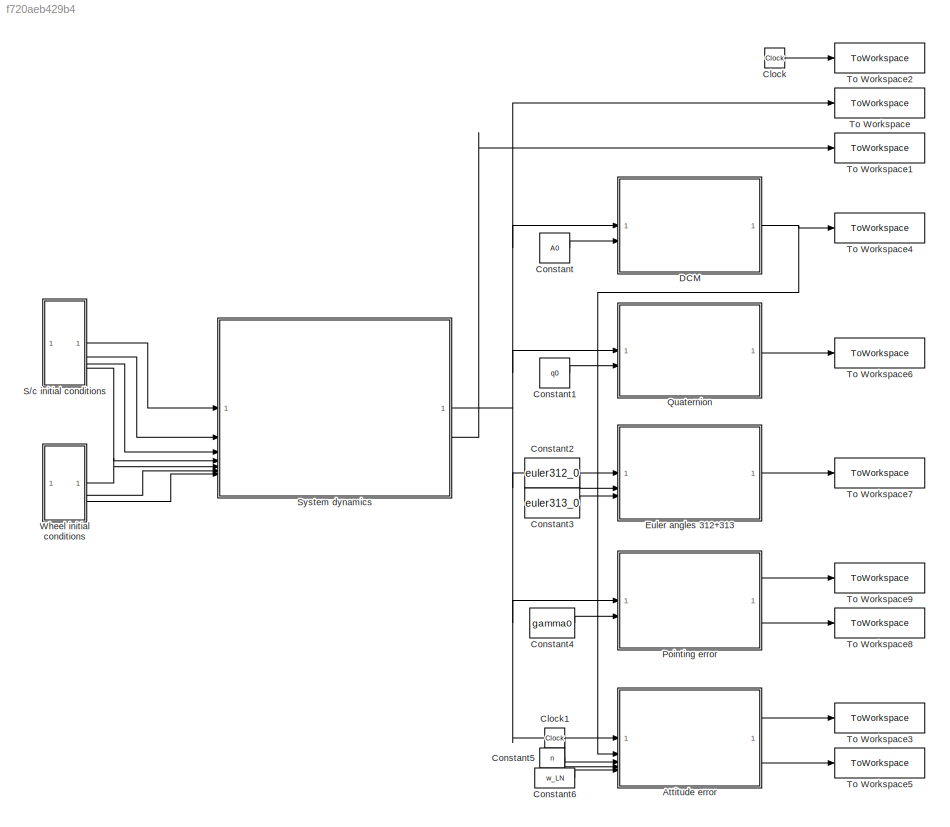
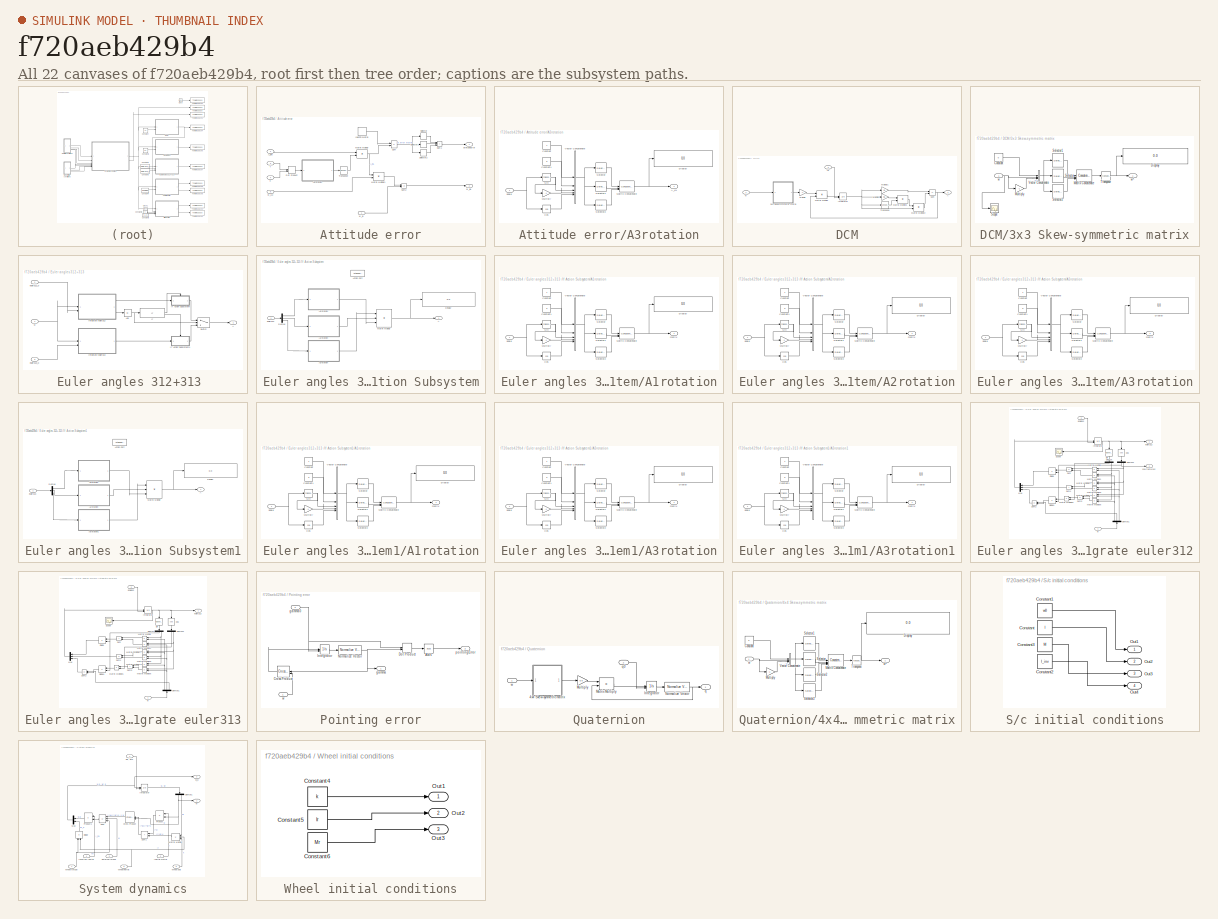
[diagram: thumbnail index - all 22 canvases of the model, root first then tree order]
MODEL slx_f720aeb429b4
KIND model
CONFIG AbsTol = 1e-07
CONFIG EnableMultiTasking = off
CONFIG FixedStep = auto
CONFIG MaxStep = 0.01
CONFIG MinStep = auto
CONFIG RelTol = 1e-09
CONFIG SampleTimeConstraint = Unconstrained
CONFIG SolverName = VariableStepAuto
CONFIG StartTime = 0.0
CONFIG StopTime = 20
BLOCK [SubSystem] Attitude error
BLOCK [SubSystem] Attitude error/A3rotation
BLOCK [Outport] Attitude error/A3rotation/A_LN
BLOCK [Constant] Attitude error/A3rotation/Constant
BLOCK [Constant] Attitude error/A3rotation/Constant1
  Value = 0
BLOCK [Trigonometry] Attitude error/A3rotation/Cos
  Operator = cos
BLOCK [Display] Attitude error/A3rotation/Display
  Decimation = 1
BLOCK [Concatenate] Attitude error/A3rotation/Matrix Concatenate
  ConcatenateDimension = 2
  Mode = Multidimensional array
  NumInputs = 3
BLOCK [Gain] Attitude error/A3rotation/Multiply
  Gain = -1
BLOCK [Selector] Attitude error/A3rotation/Selector
  IndexOptions = Index vector (dialog)
  Indices = [5 4 2]
  InputPortWidth = 5
  OutputSizes = 1
BLOCK [Selector] Attitude error/A3rotation/Selector1
  IndexOptions = Index vector (dialog)
  Indices = [3 5 2]
  InputPortWidth = 5
  OutputSizes = 1
BLOCK [Selector] Attitude error/A3rotation/Selector2
  IndexOptions = Index vector (dialog)
  Indices = [2 2 1]
  InputPortWidth = 5
  OutputSizes = 1
BLOCK [Trigonometry] Attitude error/A3rotation/Sin
BLOCK [Concatenate] Attitude error/A3rotation/Vector Concatenate
  NumInputs = 5
BLOCK [Inport] Attitude error/A3rotation/angle
BLOCK [Inport] Attitude error/A_BN
  Port = 2
BLOCK [DotProduct] Attitude error/Dot Product
  OutDataTypeStr = Inherit: Inherit via internal rule
BLOCK [IdentityMatrix] Attitude error/IdentityMatrix
  OutputDimensions = 3
BLOCK [Product] Attitude error/Matrix Multiply
  Multiplication = Matrix(*)
BLOCK [Product] Attitude error/Matrix Multiply1
  Multiplication = Matrix(*)
BLOCK [Selector] Attitude error/Selector
  IndexOptions = Index vector (dialog),Index vector (dialog)
  Indices = 1,1
  InputPortWidth = 3
  NumberOfDimensions = 2
  OutputSizes = 1,1
BLOCK [Selector] Attitude error/Selector1
  IndexOptions = Index vector (dialog),Index vector (dialog)
  Indices = 2,2
  InputPortWidth = 3
  NumberOfDimensions = 2
  OutputSizes = 1,1
BLOCK [Selector] Attitude error/Selector2
  IndexOptions = Index vector (dialog),Index vector (dialog)
  Indices = 3,3
  InputPortWidth = 3
  NumberOfDimensions = 2
  OutputSizes = 1,1
BLOCK [Sum] Attitude error/Sum
  IconShape = rectangular
  Inputs = |-+
BLOCK [Sum] Attitude error/Sum1
  IconShape = rectangular
  Inputs = |+++
BLOCK [Sum] Attitude error/Sum2
  IconShape = rectangular
  Inputs = |-+
BLOCK [Math] Attitude error/Transpose
  Operator = transpose
BLOCK [Outport] Attitude error/attitudeError
BLOCK [Inport] Attitude error/n
  Port = 4
BLOCK [Inport] Attitude error/t
  Port = 3
BLOCK [Inport] Attitude error/w_B
BLOCK [Outport] Attitude error/w_BL
  Port = 2
BLOCK [Inport] Attitude error/w_LN
  Port = 5
BLOCK [Clock] Clock
BLOCK [Clock] Clock1
BLOCK [Constant] Constant
  Value = A0
  VectorParams1D = off
BLOCK [Constant] Constant1
  Value = q0
  VectorParams1D = off
BLOCK [Constant] Constant2
  Value = euler312_0
  VectorParams1D = off
BLOCK [Constant] Constant3
  Value = euler313_0
  VectorParams1D = off
BLOCK [Constant] Constant4
  Value = gamma0
BLOCK [Constant] Constant5
  Value = n
  VectorParams1D = off
BLOCK [Constant] Constant6
  Value = w_LN
  VectorParams1D = off
BLOCK [SubSystem] DCM
BLOCK [SubSystem] DCM/3x3 Skew-symmetric matrix
BLOCK [Constant] DCM/3x3 Skew-symmetric matrix/Constant
  Value = 0
BLOCK [Display] DCM/3x3 Skew-symmetric matrix/Display
  Decimation = 1
BLOCK [Concatenate] DCM/3x3 Skew-symmetric matrix/Matrix Concatenate
  ConcatenateDimension = 2
  Mode = Multidimensional array
  NumInputs = 3
BLOCK [Gain] DCM/3x3 Skew-symmetric matrix/Multiply
  Gain = -1
BLOCK [Scope] DCM/3x3 Skew-symmetric matrix/Scope
  Floating = off
  NumInputPorts = 1
  ScopeSpecificationString = Simulink.scopes.TimeScopeBlockCfg('CurrentConfiguration', extmgr.ConfigurationSet(extmgr.Configuration('Core','General UI',true),extmgr.Configuration('Core','Source UI',true),extmgr.Configuration('Sources','WiredSimulink',true,'DataLoggingVariableName','ScopeData3'),extmgr.Configuration('Visuals','Time Domain',true,'SerializedDisplays',{struct('MinYLimReal','-0.40329','MaxYLimReal','0.85229','YLab...<+1418ch>
BLOCK [Selector] DCM/3x3 Skew-symmetric matrix/Selector
  IndexOptions = Index vector (dialog)
  Indices = [4 1 5]
  InputPortWidth = 7
  OutputSizes = 1
BLOCK [Selector] DCM/3x3 Skew-symmetric matrix/Selector1
  IndexOptions = Index vector (dialog)
  Indices = [1 7 3]
  InputPortWidth = 7
  OutputSizes = 1
BLOCK [Selector] DCM/3x3 Skew-symmetric matrix/Selector2
  IndexOptions = Index vector (dialog)
  Indices = [6 2 1]
  InputPortWidth = 7
  OutputSizes = 1
BLOCK [Math] DCM/3x3 Skew-symmetric matrix/Transpose
  Operator = transpose
BLOCK [Concatenate] DCM/3x3 Skew-symmetric matrix/Vector Concatenate
  NumInputs = 3
BLOCK [Inport] DCM/3x3 Skew-symmetric matrix/w
BLOCK [Outport] DCM/3x3 Skew-symmetric matrix/w^
BLOCK [Outport] DCM/A
BLOCK [Inport] DCM/A0
  Port = 2
BLOCK [Integrator] DCM/Integrator
  InitialConditionSource = external
BLOCK [Product] DCM/Matrix Multiply
  Multiplication = Matrix(*)
BLOCK [Product] DCM/Matrix Multiply1
  Multiplication = Matrix(*)
BLOCK [Product] DCM/Matrix Multiply2
  Multiplication = Matrix(*)
BLOCK [Gain] DCM/Multiply
  Gain = -1
BLOCK [Gain] DCM/Multiply1
  Gain = 1.5
BLOCK [Gain] DCM/Multiply2
  Gain = 0.5
BLOCK [Sum] DCM/Sum
  IconShape = rectangular
  Inputs = |+-
BLOCK [Math] DCM/Transpose
  Operator = transpose
BLOCK [Inport] DCM/w
BLOCK [SubSystem] Euler angles 312+313 
BLOCK [Outport] Euler angles 312+313 /A
BLOCK [Abs] Euler angles 312+313 /Abs
  SaturateOnIntegerOverflow = off
BLOCK [If] Euler angles 312+313 /If
  IfExpression = u1 > 0.1
BLOCK [SubSystem] Euler angles 312+313 /If Action Subsystem
  TreatAsAtomicUnit = on
BLOCK [Outport] Euler angles 312+313 /If Action Subsystem/A
BLOCK [SubSystem] Euler angles 312+313 /If Action Subsystem/A1rotation
BLOCK [Constant] Euler angles 312+313 /If Action Subsystem/A1rotation/Constant
BLOCK [Constant] Euler angles 312+313 /If Action Subsystem/A1rotation/Constant1
  Value = 0
BLOCK [Trigonometry] Euler angles 312+313 /If Action Subsystem/A1rotation/Cos
  Operator = cos
BLOCK [Display] Euler angles 312+313 /If Action Subsystem/A1rotation/Display
  Decimation = 1
BLOCK [Concatenate] Euler angles 312+313 /If Action Subsystem/A1rotation/Matrix Concatenate
  ConcatenateDimension = 2
  Mode = Multidimensional array
  NumInputs = 3
BLOCK [Gain] Euler angles 312+313 /If Action Subsystem/A1rotation/Multiply
  Gain = -1
BLOCK [Selector] Euler angles 312+313 /If Action Subsystem/A1rotation/Selector
  IndexOptions = Index vector (dialog)
  Indices = [1 2 2]
  InputPortWidth = 5
  OutputSizes = 1
BLOCK [Selector] Euler angles 312+313 /If Action Subsystem/A1rotation/Selector1
  IndexOptions = Index vector (dialog)
  Indices = [2 5 4]
  InputPortWidth = 5
  OutputSizes = 1
BLOCK [Selector] Euler angles 312+313 /If Action Subsystem/A1rotation/Selector2
  IndexOptions = Index vector (dialog)
  Indices = [2 3 5]
  InputPortWidth = 5
  OutputSizes = 1
BLOCK [Trigonometry] Euler angles 312+313 /If Action Subsystem/A1rotation/Sin
BLOCK [Concatenate] Euler angles 312+313 /If Action Subsystem/A1rotation/Vector Concatenate
  NumInputs = 5
BLOCK [Inport] Euler angles 312+313 /If Action Subsystem/A1rotation/angle
BLOCK [Outport] Euler angles 312+313 /If Action Subsystem/A1rotation/matrix
BLOCK [SubSystem] Euler angles 312+313 /If Action Subsystem/A2rotation
BLOCK [Constant] Euler angles 312+313 /If Action Subsystem/A2rotation/Constant
BLOCK [Constant] Euler angles 312+313 /If Action Subsystem/A2rotation/Constant1
  Value = 0
BLOCK [Trigonometry] Euler angles 312+313 /If Action Subsystem/A2rotation/Cos
  Operator = cos
BLOCK [Display] Euler angles 312+313 /If Action Subsystem/A2rotation/Display
  Decimation = 1
BLOCK [Concatenate] Euler angles 312+313 /If Action Subsystem/A2rotation/Matrix Concatenate
  ConcatenateDimension = 2
  Mode = Multidimensional array
  NumInputs = 3
BLOCK [Gain] Euler angles 312+313 /If Action Subsystem/A2rotation/Multiply
  Gain = -1
BLOCK [Selector] Euler angles 312+313 /If Action Subsystem/A2rotation/Selector
  IndexOptions = Index vector (dialog)
  Indices = [5 2 3]
  InputPortWidth = 5
  OutputSizes = 1
BLOCK [Selector] Euler angles 312+313 /If Action Subsystem/A2rotation/Selector1
  IndexOptions = Index vector (dialog)
  Indices = [2 1 2]
  InputPortWidth = 5
  OutputSizes = 1
BLOCK [Selector] Euler angles 312+313 /If Action Subsystem/A2rotation/Selector2
  IndexOptions = Index vector (dialog)
  Indices = [4 2 5]
  InputPortWidth = 5
  OutputSizes = 1
BLOCK [Trigonometry] Euler angles 312+313 /If Action Subsystem/A2rotation/Sin
BLOCK [Concatenate] Euler angles 312+313 /If Action Subsystem/A2rotation/Vector Concatenate
  NumInputs = 5
BLOCK [Inport] Euler angles 312+313 /If Action Subsystem/A2rotation/angle
BLOCK [Outport] Euler angles 312+313 /If Action Subsystem/A2rotation/matrix
BLOCK [SubSystem] Euler angles 312+313 /If Action Subsystem/A3rotation
BLOCK [Constant] Euler angles 312+313 /If Action Subsystem/A3rotation/Constant
BLOCK [Constant] Euler angles 312+313 /If Action Subsystem/A3rotation/Constant1
  Value = 0
BLOCK [Trigonometry] Euler angles 312+313 /If Action Subsystem/A3rotation/Cos
  Operator = cos
BLOCK [Display] Euler angles 312+313 /If Action Subsystem/A3rotation/Display
  Decimation = 1
BLOCK [Concatenate] Euler angles 312+313 /If Action Subsystem/A3rotation/Matrix Concatenate
  ConcatenateDimension = 2
  Mode = Multidimensional array
  NumInputs = 3
BLOCK [Gain] Euler angles 312+313 /If Action Subsystem/A3rotation/Multiply
  Gain = -1
BLOCK [Selector] Euler angles 312+313 /If Action Subsystem/A3rotation/Selector
  IndexOptions = Index vector (dialog)
  Indices = [5 4 2]
  InputPortWidth = 5
  OutputSizes = 1
BLOCK [Selector] Euler angles 312+313 /If Action Subsystem/A3rotation/Selector1
  IndexOptions = Index vector (dialog)
  Indices = [3 5 2]
  InputPortWidth = 5
  OutputSizes = 1
BLOCK [Selector] Euler angles 312+313 /If Action Subsystem/A3rotation/Selector2
  IndexOptions = Index vector (dialog)
  Indices = [2 2 1]
  InputPortWidth = 5
  OutputSizes = 1
BLOCK [Trigonometry] Euler angles 312+313 /If Action Subsystem/A3rotation/Sin
BLOCK [Concatenate] Euler angles 312+313 /If Action Subsystem/A3rotation/Vector Concatenate
  NumInputs = 5
BLOCK [Inport] Euler angles 312+313 /If Action Subsystem/A3rotation/angle
BLOCK [Outport] Euler angles 312+313 /If Action Subsystem/A3rotation/matrix
BLOCK [ActionPort] Euler angles 312+313 /If Action Subsystem/Action Port
  ActionPortLabel = if(u1 > 0.1)
BLOCK [Demux] Euler angles 312+313 /If Action Subsystem/Demux
  Outputs = 3
BLOCK [Display] Euler angles 312+313 /If Action Subsystem/Display
  Decimation = 1
BLOCK [Product] Euler angles 312+313 /If Action Subsystem/Matrix Multiply
  Inputs = 3
  Multiplication = Matrix(*)
BLOCK [Inport] Euler angles 312+313 /If Action Subsystem/euler312
BLOCK [SubSystem] Euler angles 312+313 /If Action Subsystem1
  TreatAsAtomicUnit = on
BLOCK [Outport] Euler angles 312+313 /If Action Subsystem1/A
BLOCK [SubSystem] Euler angles 312+313 /If Action Subsystem1/A1rotation
BLOCK [Constant] Euler angles 312+313 /If Action Subsystem1/A1rotation/Constant
BLOCK [Constant] Euler angles 312+313 /If Action Subsystem1/A1rotation/Constant1
  Value = 0
BLOCK [Trigonometry] Euler angles 312+313 /If Action Subsystem1/A1rotation/Cos
  Operator = cos
BLOCK [Display] Euler angles 312+313 /If Action Subsystem1/A1rotation/Display
  Decimation = 1
BLOCK [Concatenate] Euler angles 312+313 /If Action Subsystem1/A1rotation/Matrix Concatenate
  ConcatenateDimension = 2
  Mode = Multidimensional array
  NumInputs = 3
BLOCK [Gain] Euler angles 312+313 /If Action Subsystem1/A1rotation/Multiply
  Gain = -1
BLOCK [Selector] Euler angles 312+313 /If Action Subsystem1/A1rotation/Selector
  IndexOptions = Index vector (dialog)
  Indices = [1 2 2]
  InputPortWidth = 5
  OutputSizes = 1
BLOCK [Selector] Euler angles 312+313 /If Action Subsystem1/A1rotation/Selector1
  IndexOptions = Index vector (dialog)
  Indices = [2 5 4]
  InputPortWidth = 5
  OutputSizes = 1
BLOCK [Selector] Euler angles 312+313 /If Action Subsystem1/A1rotation/Selector2
  IndexOptions = Index vector (dialog)
  Indices = [2 3 5]
  InputPortWidth = 5
  OutputSizes = 1
BLOCK [Trigonometry] Euler angles 312+313 /If Action Subsystem1/A1rotation/Sin
BLOCK [Concatenate] Euler angles 312+313 /If Action Subsystem1/A1rotation/Vector Concatenate
  NumInputs = 5
BLOCK [Inport] Euler angles 312+313 /If Action Subsystem1/A1rotation/angle
BLOCK [Outport] Euler angles 312+313 /If Action Subsystem1/A1rotation/matrix
BLOCK [SubSystem] Euler angles 312+313 /If Action Subsystem1/A3rotation
BLOCK [Constant] Euler angles 312+313 /If Action Subsystem1/A3rotation/Constant
BLOCK [Constant] Euler angles 312+313 /If Action Subsystem1/A3rotation/Constant1
  Value = 0
BLOCK [Trigonometry] Euler angles 312+313 /If Action Subsystem1/A3rotation/Cos
  Operator = cos
BLOCK [Display] Euler angles 312+313 /If Action Subsystem1/A3rotation/Display
  Decimation = 1
BLOCK [Concatenate] Euler angles 312+313 /If Action Subsystem1/A3rotation/Matrix Concatenate
  ConcatenateDimension = 2
  Mode = Multidimensional array
  NumInputs = 3
BLOCK [Gain] Euler angles 312+313 /If Action Subsystem1/A3rotation/Multiply
  Gain = -1
BLOCK [Selector] Euler angles 312+313 /If Action Subsystem1/A3rotation/Selector
  IndexOptions = Index vector (dialog)
  Indices = [5 4 2]
  InputPortWidth = 5
  OutputSizes = 1
BLOCK [Selector] Euler angles 312+313 /If Action Subsystem1/A3rotation/Selector1
  IndexOptions = Index vector (dialog)
  Indices = [3 5 2]
  InputPortWidth = 5
  OutputSizes = 1
BLOCK [Selector] Euler angles 312+313 /If Action Subsystem1/A3rotation/Selector2
  IndexOptions = Index vector (dialog)
  Indices = [2 2 1]
  InputPortWidth = 5
  OutputSizes = 1
BLOCK [Trigonometry] Euler angles 312+313 /If Action Subsystem1/A3rotation/Sin
BLOCK [Concatenate] Euler angles 312+313 /If Action Subsystem1/A3rotation/Vector Concatenate
  NumInputs = 5
BLOCK [Inport] Euler angles 312+313 /If Action Subsystem1/A3rotation/angle
BLOCK [Outport] Euler angles 312+313 /If Action Subsystem1/A3rotation/matrix
BLOCK [SubSystem] Euler angles 312+313 /If Action Subsystem1/A3rotation1
BLOCK [Constant] Euler angles 312+313 /If Action Subsystem1/A3rotation1/Constant
BLOCK [Constant] Euler angles 312+313 /If Action Subsystem1/A3rotation1/Constant1
  Value = 0
BLOCK [Trigonometry] Euler angles 312+313 /If Action Subsystem1/A3rotation1/Cos
  Operator = cos
BLOCK [Display] Euler angles 312+313 /If Action Subsystem1/A3rotation1/Display
  Decimation = 1
BLOCK [Concatenate] Euler angles 312+313 /If Action Subsystem1/A3rotation1/Matrix Concatenate
  ConcatenateDimension = 2
  Mode = Multidimensional array
  NumInputs = 3
BLOCK [Gain] Euler angles 312+313 /If Action Subsystem1/A3rotation1/Multiply
  Gain = -1
BLOCK [Selector] Euler angles 312+313 /If Action Subsystem1/A3rotation1/Selector
  IndexOptions = Index vector (dialog)
  Indices = [5 4 2]
  InputPortWidth = 5
  OutputSizes = 1
BLOCK [Selector] Euler angles 312+313 /If Action Subsystem1/A3rotation1/Selector1
  IndexOptions = Index vector (dialog)
  Indices = [3 5 2]
  InputPortWidth = 5
  OutputSizes = 1
BLOCK [Selector] Euler angles 312+313 /If Action Subsystem1/A3rotation1/Selector2
  IndexOptions = Index vector (dialog)
  Indices = [2 2 1]
  InputPortWidth = 5
  OutputSizes = 1
BLOCK [Trigonometry] Euler angles 312+313 /If Action Subsystem1/A3rotation1/Sin
BLOCK [Concatenate] Euler angles 312+313 /If Action Subsystem1/A3rotation1/Vector Concatenate
  NumInputs = 5
BLOCK [Inport] Euler angles 312+313 /If Action Subsystem1/A3rotation1/angle
BLOCK [Outport] Euler angles 312+313 /If Action Subsystem1/A3rotation1/matrix
BLOCK [ActionPort] Euler angles 312+313 /If Action Subsystem1/Action Port
  ActionPortLabel = else
BLOCK [Demux] Euler angles 312+313 /If Action Subsystem1/Demux
  Outputs = 3
BLOCK [Display] Euler angles 312+313 /If Action Subsystem1/Display
  Decimation = 1
BLOCK [Product] Euler angles 312+313 /If Action Subsystem1/Matrix Multiply
  Inputs = 3
  Multiplication = Matrix(*)
BLOCK [Inport] Euler angles 312+313 /If Action Subsystem1/euler313
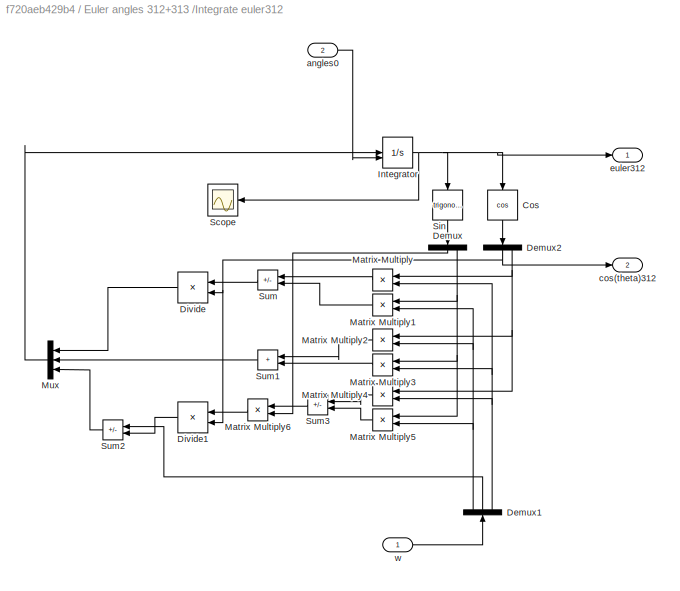
BLOCK [SubSystem] Euler angles 312+313 /Integrate euler312
BLOCK [Trigonometry] Euler angles 312+313 /Integrate euler312/Cos
  NameLocation = left
  Operator = cos
BLOCK [Demux] Euler angles 312+313 /Integrate euler312/Demux
  NameLocation = left
  Outputs = 3
BLOCK [Demux] Euler angles 312+313 /Integrate euler312/Demux1
  NameLocation = right
  Outputs = 3
BLOCK [Demux] Euler angles 312+313 /Integrate euler312/Demux2
  NameLocation = left
  Outputs = 3
BLOCK [Product] Euler angles 312+313 /Integrate euler312/Divide
  Inputs = */
  NameLocation = top
BLOCK [Product] Euler angles 312+313 /Integrate euler312/Divide1
  Inputs = */
  NameLocation = top
BLOCK [Integrator] Euler angles 312+313 /Integrate euler312/Integrator
  InitialConditionSource = external
BLOCK [Product] Euler angles 312+313 /Integrate euler312/Matrix Multiply
  NameLocation = top
BLOCK [Product] Euler angles 312+313 /Integrate euler312/Matrix Multiply1
  NameLocation = top
BLOCK [Product] Euler angles 312+313 /Integrate euler312/Matrix Multiply2
  NameLocation = top
BLOCK [Product] Euler angles 312+313 /Integrate euler312/Matrix Multiply3
  NameLocation = top
BLOCK [Product] Euler angles 312+313 /Integrate euler312/Matrix Multiply4
  NameLocation = top
BLOCK [Product] Euler angles 312+313 /Integrate euler312/Matrix Multiply5
  NameLocation = top
BLOCK [Product] Euler angles 312+313 /Integrate euler312/Matrix Multiply6
  NameLocation = top
BLOCK [Mux] Euler angles 312+313 /Integrate euler312/Mux
  DisplayOption = bar
  Inputs = 3
  NameLocation = top
BLOCK [Scope] Euler angles 312+313 /Integrate euler312/Scope
  Floating = off
  NameLocation = top
  NumInputPorts = 1
  ScopeSpecificationString = Simulink.scopes.TimeScopeBlockCfg('CurrentConfiguration', extmgr.ConfigurationSet(extmgr.Configuration('Core','General UI',true),extmgr.Configuration('Core','Source UI',true),extmgr.Configuration('Sources','WiredSimulink',true,'DataLoggingVariableName','ScopeData1'),extmgr.Configuration('Visuals','Time Domain',true,'SerializedDisplays',{struct('MinYLimReal','-29.06645','MaxYLimReal','73.0633','YLa...<+1403ch>
BLOCK [Trigonometry] Euler angles 312+313 /Integrate euler312/Sin
  NameLocation = left
BLOCK [Sum] Euler angles 312+313 /Integrate euler312/Sum
  IconShape = rectangular
  Inputs = |+-
  NameLocation = top
BLOCK [Sum] Euler angles 312+313 /Integrate euler312/Sum1
  IconShape = rectangular
  Inputs = |++
  NameLocation = top
BLOCK [Sum] Euler angles 312+313 /Integrate euler312/Sum2
  IconShape = rectangular
  Inputs = |+-
  NameLocation = top
BLOCK [Sum] Euler angles 312+313 /Integrate euler312/Sum3
  IconShape = rectangular
  Inputs = |+-
  NameLocation = top
BLOCK [Inport] Euler angles 312+313 /Integrate euler312/angles0
  Port = 2
BLOCK [Outport] Euler angles 312+313 /Integrate euler312/cos(theta)312
  Port = 2
BLOCK [Outport] Euler angles 312+313 /Integrate euler312/euler312
BLOCK [Inport] Euler angles 312+313 /Integrate euler312/w
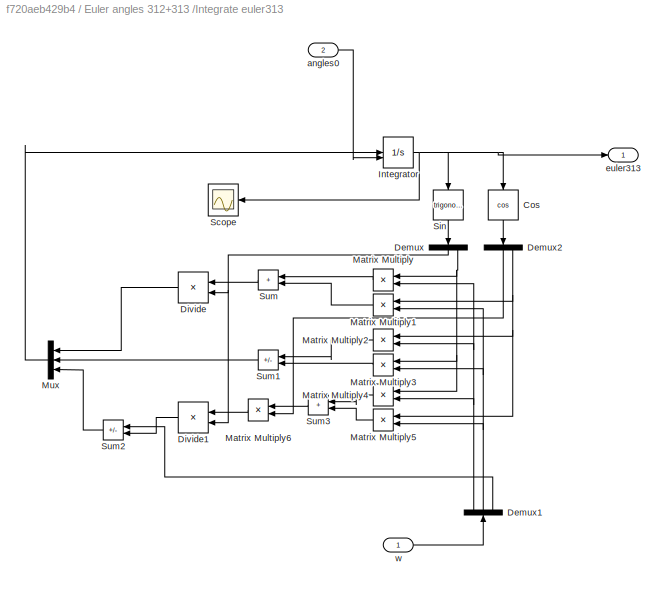
BLOCK [SubSystem] Euler angles 312+313 /Integrate euler313
BLOCK [Trigonometry] Euler angles 312+313 /Integrate euler313/Cos
  NameLocation = left
  Operator = cos
BLOCK [Demux] Euler angles 312+313 /Integrate euler313/Demux
  NameLocation = left
  Outputs = 3
BLOCK [Demux] Euler angles 312+313 /Integrate euler313/Demux1
  NameLocation = right
  Outputs = 3
BLOCK [Demux] Euler angles 312+313 /Integrate euler313/Demux2
  NameLocation = left
  Outputs = 3
BLOCK [Product] Euler angles 312+313 /Integrate euler313/Divide
  Inputs = */
  NameLocation = top
BLOCK [Product] Euler angles 312+313 /Integrate euler313/Divide1
  Inputs = */
  NameLocation = top
BLOCK [Integrator] Euler angles 312+313 /Integrate euler313/Integrator
  InitialConditionSource = external
BLOCK [Product] Euler angles 312+313 /Integrate euler313/Matrix Multiply
  NameLocation = top
BLOCK [Product] Euler angles 312+313 /Integrate euler313/Matrix Multiply1
  NameLocation = top
BLOCK [Product] Euler angles 312+313 /Integrate euler313/Matrix Multiply2
  NameLocation = top
BLOCK [Product] Euler angles 312+313 /Integrate euler313/Matrix Multiply3
  NameLocation = top
BLOCK [Product] Euler angles 312+313 /Integrate euler313/Matrix Multiply4
  NameLocation = top
BLOCK [Product] Euler angles 312+313 /Integrate euler313/Matrix Multiply5
  NameLocation = top
BLOCK [Product] Euler angles 312+313 /Integrate euler313/Matrix Multiply6
  NameLocation = top
BLOCK [Mux] Euler angles 312+313 /Integrate euler313/Mux
  DisplayOption = bar
  Inputs = 3
  NameLocation = top
BLOCK [Scope] Euler angles 312+313 /Integrate euler313/Scope
  Floating = off
  NameLocation = top
  NumInputPorts = 1
  ScopeSpecificationString = Simulink.scopes.TimeScopeBlockCfg('CurrentConfiguration', extmgr.ConfigurationSet(extmgr.Configuration('Core','General UI',true),extmgr.Configuration('Core','Source UI',true),extmgr.Configuration('Sources','WiredSimulink',true,'DataLoggingVariableName','ScopeData2'),extmgr.Configuration('Visuals','Time Domain',true,'SerializedDisplays',{struct('MinYLimReal','-34.15993','MaxYLimReal','323.00699','Y...<+1411ch>
BLOCK [Trigonometry] Euler angles 312+313 /Integrate euler313/Sin
  NameLocation = left
BLOCK [Sum] Euler angles 312+313 /Integrate euler313/Sum
  IconShape = rectangular
  Inputs = |++
  NameLocation = top
BLOCK [Sum] Euler angles 312+313 /Integrate euler313/Sum1
  IconShape = rectangular
  Inputs = |+-
  NameLocation = top
BLOCK [Sum] Euler angles 312+313 /Integrate euler313/Sum2
  IconShape = rectangular
  Inputs = |+-
  NameLocation = top
BLOCK [Sum] Euler angles 312+313 /Integrate euler313/Sum3
  IconShape = rectangular
  Inputs = |++
  NameLocation = top
BLOCK [Inport] Euler angles 312+313 /Integrate euler313/angles0
  Port = 2
BLOCK [Outport] Euler angles 312+313 /Integrate euler313/euler313
BLOCK [Inport] Euler angles 312+313 /Integrate euler313/w
BLOCK [Switch] Euler angles 312+313 /Switch
  Criteria = u2 > Threshold
  InputSameDT = off
  SaturateOnIntegerOverflow = off
  Threshold = 0.1
BLOCK [Inport] Euler angles 312+313 /euler312_0
  Port = 2
BLOCK [Inport] Euler angles 312+313 /euler313_0
  Port = 3
BLOCK [Inport] Euler angles 312+313 /w
BLOCK [SubSystem] Pointing error
BLOCK [Trigonometry] Pointing error/Acos
  Operator = acos
BLOCK [Reference] Pointing error/Cross Product  REF=matrix_library/Cross Product
  LibrarySourceBlock = simulink/Matrix\nOperations/Cross Product
  NameLocation = top
  SourceBlock = matrix_library/Cross Product
  SourceType = CrossProduct
BLOCK [DotProduct] Pointing error/Dot Product
  OutDataTypeStr = Inherit: Inherit via internal rule
BLOCK [Integrator] Pointing error/Integrator
  InitialConditionSource = external
BLOCK [Reference] Pointing error/Normalize Vector  REF=vrlib/Utilities/Normalize Vector
  SourceBlock = vrlib/Utilities/Normalize Vector
  SourceType = Normalize Vector
BLOCK [Outport] Pointing error/gamma
BLOCK [Inport] Pointing error/gamma0
  Port = 2
BLOCK [Outport] Pointing error/pointingError
  Port = 2
BLOCK [Inport] Pointing error/w
BLOCK [SubSystem] Quaternion
BLOCK [SubSystem] Quaternion/4x4 Skew-symmetric matrix
BLOCK [Constant] Quaternion/4x4 Skew-symmetric matrix/Constant
  Value = 0
BLOCK [Display] Quaternion/4x4 Skew-symmetric matrix/Display
  Decimation = 1
BLOCK [Concatenate] Quaternion/4x4 Skew-symmetric matrix/Matrix Concatenate
  ConcatenateDimension = 2
  Mode = Multidimensional array
  NumInputs = 4
BLOCK [Gain] Quaternion/4x4 Skew-symmetric matrix/Multiply
  Gain = -1
BLOCK [Selector] Quaternion/4x4 Skew-symmetric matrix/Selector
  IndexOptions = Index vector (dialog)
  Indices = [7 1 2 3]
  InputPortWidth = 7
  OutputSizes = 1
BLOCK [Selector] Quaternion/4x4 Skew-symmetric matrix/Selector1
  IndexOptions = Index vector (dialog)
  Indices = [1 4 6 2]
  InputPortWidth = 7
  OutputSizes = 1
BLOCK [Selector] Quaternion/4x4 Skew-symmetric matrix/Selector2
  IndexOptions = Index vector (dialog)
  Indices = [3 5 1 4]
  InputPortWidth = 7
  OutputSizes = 1
BLOCK [Selector] Quaternion/4x4 Skew-symmetric matrix/Selector3
  IndexOptions = Index vector (dialog)
  Indices = [5 6 7 1]
  InputPortWidth = 7
  OutputSizes = 1
BLOCK [Math] Quaternion/4x4 Skew-symmetric matrix/Transpose
  Operator = transpose
BLOCK [Concatenate] Quaternion/4x4 Skew-symmetric matrix/Vector Concatenate
  NumInputs = 3
BLOCK [Inport] Quaternion/4x4 Skew-symmetric matrix/w
BLOCK [Outport] Quaternion/4x4 Skew-symmetric matrix/w^
BLOCK [Integrator] Quaternion/Integrator
  InitialConditionSource = external
BLOCK [Product] Quaternion/Matrix Multiply
  Multiplication = Matrix(*)
BLOCK [Gain] Quaternion/Multiply
  Gain = 0.5
BLOCK [Reference] Quaternion/Normalize Vector  REF=vrlib/Utilities/Normalize Vector
  SourceBlock = vrlib/Utilities/Normalize Vector
  SourceType = Normalize Vector
BLOCK [Outport] Quaternion/q
BLOCK [Inport] Quaternion/q0
  Port = 2
BLOCK [Inport] Quaternion/w
BLOCK [SubSystem] S//c initial conditions
BLOCK [Constant] S//c initial conditions/Constant
  Value = I
  VectorParams1D = off
BLOCK [Constant] S//c initial conditions/Constant1
  Value = w0
  VectorParams1D = off
BLOCK [Constant] S//c initial conditions/Constant2
  Value = I_inv
  VectorParams1D = off
BLOCK [Constant] S//c initial conditions/Constant3
  Value = M
  VectorParams1D = off
BLOCK [Outport] S//c initial conditions/Out1
BLOCK [Outport] S//c initial conditions/Out2
  Port = 2
BLOCK [Outport] S//c initial conditions/Out3
  Port = 3
BLOCK [Outport] S//c initial conditions/Out4
  Port = 4
BLOCK [SubSystem] System dynamics
BLOCK [Reference] System dynamics/Cross Product  REF=matrix_library/Cross Product
  LibrarySourceBlock = simulink/Matrix\nOperations/Cross Product
  NameLocation = top
  SourceBlock = matrix_library/Cross Product
  SourceType = CrossProduct
BLOCK [Demux] System dynamics/Demux1
  NameLocation = left
  Outputs = 2
BLOCK [Product] System dynamics/Divide
  Inputs = */
  NameLocation = right
BLOCK [Inport] System dynamics/External torque
  Port = 3
BLOCK [Inport] System dynamics/Inertia matrix
  Port = 2
BLOCK [Integrator] System dynamics/Integrator
  InitialConditionSource = external
BLOCK [Inport] System dynamics/Inverted Inertia
  Port = 4
BLOCK [Product] System dynamics/Matrix Multiply
  Inputs = 3
  NameLocation = top
BLOCK [Mux] System dynamics/Mux
  DisplayOption = bar
  Inputs = 2
  NameLocation = top
BLOCK [Product] System dynamics/Product
  Multiplication = Matrix(*)
  NameLocation = top
BLOCK [Product] System dynamics/Product1
  Multiplication = Matrix(*)
  NameLocation = top
BLOCK [Sum] System dynamics/Sum
  IconShape = rectangular
  Inputs = |++-
  NameLocation = top
BLOCK [Sum] System dynamics/Sum1
  IconShape = rectangular
  Inputs = |++
  NameLocation = top
BLOCK [Inport] System dynamics/Wheel axis
  Port = 5
BLOCK [Inport] System dynamics/Wheel inertia
  Port = 6
BLOCK [Inport] System dynamics/Wheel torque
  Port = 7
BLOCK [Outport] System dynamics/w
BLOCK [Inport] System dynamics/w0, wr0
BLOCK [Outport] System dynamics/w_d
  Port = 2
BLOCK [ToWorkspace] To Workspace
  FixptAsFi = on
  MaxDataPoints = inf
  SampleTime = -1
  VariableName = w
BLOCK [ToWorkspace] To Workspace1
  FixptAsFi = on
  MaxDataPoints = inf
  SampleTime = -1
  VariableName = w_d
BLOCK [ToWorkspace] To Workspace2
  FixptAsFi = on
  MaxDataPoints = inf
  SampleTime = -1
  VariableName = time
BLOCK [ToWorkspace] To Workspace3
  FixptAsFi = on
  MaxDataPoints = inf
  SampleTime = -1
  VariableName = attitudeError
BLOCK [ToWorkspace] To Workspace4
  FixptAsFi = on
  MaxDataPoints = inf
  SampleTime = -1
  VariableName = A
BLOCK [ToWorkspace] To Workspace5
  FixptAsFi = on
  MaxDataPoints = inf
  SampleTime = -1
  VariableName = w_BL
BLOCK [ToWorkspace] To Workspace6
  FixptAsFi = on
  MaxDataPoints = inf
  SampleTime = -1
  VariableName = q
BLOCK [ToWorkspace] To Workspace7
  FixptAsFi = on
  MaxDataPoints = inf
  SampleTime = -1
  VariableName = Aeuler
BLOCK [ToWorkspace] To Workspace8
  FixptAsFi = on
  MaxDataPoints = inf
  SampleTime = -1
  VariableName = pointingError
BLOCK [ToWorkspace] To Workspace9
  FixptAsFi = on
  MaxDataPoints = inf
  SampleTime = -1
  VariableName = gamma
BLOCK [SubSystem] Wheel initial conditions
BLOCK [Constant] Wheel initial conditions/Constant4
  Value = k
  VectorParams1D = off
BLOCK [Constant] Wheel initial conditions/Constant5
  Value = Ir
BLOCK [Constant] Wheel initial conditions/Constant6
  Value = Mr
BLOCK [Outport] Wheel initial conditions/Out1
BLOCK [Outport] Wheel initial conditions/Out2
  Port = 2
BLOCK [Outport] Wheel initial conditions/Out3
  Port = 3
LINE Attitude error/A3rotation/Constant1:1 -> Attitude error/A3rotation/Vector Concatenate:2
LINE Attitude error/A3rotation/Constant:1 -> Attitude error/A3rotation/Vector Concatenate:1
LINE Attitude error/A3rotation/Cos:1 -> Attitude error/A3rotation/Vector Concatenate:5
NET Attitude error/A3rotation/Matrix Concatenate:1 -> Attitude error/A3rotation/A_LN:1, Attitude error/A3rotation/Display:1
LINE Attitude error/A3rotation/Multiply:1 -> Attitude error/A3rotation/Vector Concatenate:4
LINE Attitude error/A3rotation/Selector1:1 -> Attitude error/A3rotation/Matrix Concatenate:2
LINE Attitude error/A3rotation/Selector2:1 -> Attitude error/A3rotation/Matrix Concatenate:3
LINE Attitude error/A3rotation/Selector:1 -> Attitude error/A3rotation/Matrix Concatenate:1
NET Attitude error/A3rotation/Sin:1 -> Attitude error/A3rotation/Multiply:1, Attitude error/A3rotation/Vector Concatenate:3
NET Attitude error/A3rotation/Vector Concatenate:1 -> Attitude error/A3rotation/Selector1:1, Attitude error/A3rotation/Selector2:1, Attitude error/A3rotation/Selector:1
NET Attitude error/A3rotation/angle:1 -> Attitude error/A3rotation/Cos:1, Attitude error/A3rotation/Sin:1
LINE Attitude error/A3rotation:1 -> Attitude error/Transpose:1
LINE Attitude error/A_BN:1 -> Attitude error/Matrix Multiply:1
LINE Attitude error/Dot Product:1 -> Attitude error/A3rotation:1
LINE Attitude error/IdentityMatrix:1 -> Attitude error/Sum:1
LINE Attitude error/Matrix Multiply1:1 -> Attitude error/Sum2:1
NET Attitude error/Matrix Multiply:1 -> Attitude error/Matrix Multiply1:1, Attitude error/Sum:2
LINE Attitude error/Selector1:1 -> Attitude error/Sum1:2
LINE Attitude error/Selector2:1 -> Attitude error/Sum1:3
LINE Attitude error/Selector:1 -> Attitude error/Sum1:1
LINE Attitude error/Sum1:1 -> Attitude error/attitudeError:1
LINE Attitude error/Sum2:1 -> Attitude error/w_BL:1
NET Attitude error/Sum:1 -> Attitude error/Selector1:1, Attitude error/Selector2:1, Attitude error/Selector:1
LINE Attitude error/Transpose:1 -> Attitude error/Matrix Multiply:2
LINE Attitude error/n:1 -> Attitude error/Dot Product:2
LINE Attitude error/t:1 -> Attitude error/Dot Product:1
LINE Attitude error/w_B:1 -> Attitude error/Sum2:2
LINE Attitude error/w_LN:1 -> Attitude error/Matrix Multiply1:2
LINE Attitude error:1 -> To Workspace3:1
LINE Attitude error:2 -> To Workspace5:1
LINE Clock1:1 -> Attitude error:3
LINE Clock:1 -> To Workspace2:1
LINE Constant1:1 -> Quaternion:2
LINE Constant2:1 -> Euler angles 312+313 :2
LINE Constant3:1 -> Euler angles 312+313 :3
LINE Constant4:1 -> Pointing error:2
LINE Constant5:1 -> Attitude error:4
LINE Constant6:1 -> Attitude error:5
LINE Constant:1 -> DCM:2
LINE DCM/3x3 Skew-symmetric matrix/Constant:1 -> DCM/3x3 Skew-symmetric matrix/Vector Concatenate:1
LINE DCM/3x3 Skew-symmetric matrix/Matrix Concatenate:1 -> DCM/3x3 Skew-symmetric matrix/Transpose:1
LINE DCM/3x3 Skew-symmetric matrix/Multiply:1 -> DCM/3x3 Skew-symmetric matrix/Vector Concatenate:3
LINE DCM/3x3 Skew-symmetric matrix/Selector1:1 -> DCM/3x3 Skew-symmetric matrix/Matrix Concatenate:1
LINE DCM/3x3 Skew-symmetric matrix/Selector2:1 -> DCM/3x3 Skew-symmetric matrix/Matrix Concatenate:3
LINE DCM/3x3 Skew-symmetric matrix/Selector:1 -> DCM/3x3 Skew-symmetric matrix/Matrix Concatenate:2
NET DCM/3x3 Skew-symmetric matrix/Transpose:1 -> DCM/3x3 Skew-symmetric matrix/Display:1, DCM/3x3 Skew-symmetric matrix/w^:1
NET DCM/3x3 Skew-symmetric matrix/Vector Concatenate:1 -> DCM/3x3 Skew-symmetric matrix/Selector1:1, DCM/3x3 Skew-symmetric matrix/Selector2:1, DCM/3x3 Skew-symmetric matrix/Selector:1
NET DCM/3x3 Skew-symmetric matrix/w:1 -> DCM/3x3 Skew-symmetric matrix/Multiply:1, DCM/3x3 Skew-symmetric matrix/Scope:1, DCM/3x3 Skew-symmetric matrix/Vector Concatenate:2
LINE DCM/3x3 Skew-symmetric matrix:1 -> DCM/Multiply:1
LINE DCM/A0:1 -> DCM/Integrator:2
NET DCM/Integrator:1 -> DCM/Matrix Multiply2:2, DCM/Multiply1:1, DCM/Multiply2:1, DCM/Transpose:1
LINE DCM/Matrix Multiply1:1 -> DCM/Matrix Multiply2:1
LINE DCM/Matrix Multiply2:1 -> DCM/Sum:2
LINE DCM/Matrix Multiply:1 -> DCM/Integrator:1
LINE DCM/Multiply1:1 -> DCM/Sum:1
LINE DCM/Multiply2:1 -> DCM/Matrix Multiply1:1
LINE DCM/Multiply:1 -> DCM/Matrix Multiply:1
NET DCM/Sum:1 -> DCM/A:1, DCM/Matrix Multiply:2
LINE DCM/Transpose:1 -> DCM/Matrix Multiply1:2
LINE DCM/w:1 -> DCM/3x3 Skew-symmetric matrix:1
NET DCM:1 -> Attitude error:2, To Workspace4:1
NET Euler angles 312+313 /Abs:1 -> Euler angles 312+313 /If:1, Euler angles 312+313 /Switch:2
LINE Euler angles 312+313 /If Action Subsystem/A1rotation/Constant1:1 -> Euler angles 312+313 /If Action Subsystem/A1rotation/Vector Concatenate:2
LINE Euler angles 312+313 /If Action Subsystem/A1rotation/Constant:1 -> Euler angles 312+313 /If Action Subsystem/A1rotation/Vector Concatenate:1
LINE Euler angles 312+313 /If Action Subsystem/A1rotation/Cos:1 -> Euler angles 312+313 /If Action Subsystem/A1rotation/Vector Concatenate:5
NET Euler angles 312+313 /If Action Subsystem/A1rotation/Matrix Concatenate:1 -> Euler angles 312+313 /If Action Subsystem/A1rotation/Display:1, Euler angles 312+313 /If Action Subsystem/A1rotation/matrix:1
LINE Euler angles 312+313 /If Action Subsystem/A1rotation/Multiply:1 -> Euler angles 312+313 /If Action Subsystem/A1rotation/Vector Concatenate:4
LINE Euler angles 312+313 /If Action Subsystem/A1rotation/Selector1:1 -> Euler angles 312+313 /If Action Subsystem/A1rotation/Matrix Concatenate:2
LINE Euler angles 312+313 /If Action Subsystem/A1rotation/Selector2:1 -> Euler angles 312+313 /If Action Subsystem/A1rotation/Matrix Concatenate:3
LINE Euler angles 312+313 /If Action Subsystem/A1rotation/Selector:1 -> Euler angles 312+313 /If Action Subsystem/A1rotation/Matrix Concatenate:1
NET Euler angles 312+313 /If Action Subsystem/A1rotation/Sin:1 -> Euler angles 312+313 /If Action Subsystem/A1rotation/Multiply:1, Euler angles 312+313 /If Action Subsystem/A1rotation/Vector Concatenate:3
NET Euler angles 312+313 /If Action Subsystem/A1rotation/Vector Concatenate:1 -> Euler angles 312+313 /If Action Subsystem/A1rotation/Selector1:1, Euler angles 312+313 /If Action Subsystem/A1rotation/Selector2:1, Euler angles 312+313 /If Action Subsystem/A1rotation/Selector:1
NET Euler angles 312+313 /If Action Subsystem/A1rotation/angle:1 -> Euler angles 312+313 /If Action Subsystem/A1rotation/Cos:1, Euler angles 312+313 /If Action Subsystem/A1rotation/Sin:1
LINE Euler angles 312+313 /If Action Subsystem/A1rotation:1 -> Euler angles 312+313 /If Action Subsystem/Matrix Multiply:2
LINE Euler angles 312+313 /If Action Subsystem/A2rotation/Constant1:1 -> Euler angles 312+313 /If Action Subsystem/A2rotation/Vector Concatenate:2
LINE Euler angles 312+313 /If Action Subsystem/A2rotation/Constant:1 -> Euler angles 312+313 /If Action Subsystem/A2rotation/Vector Concatenate:1
LINE Euler angles 312+313 /If Action Subsystem/A2rotation/Cos:1 -> Euler angles 312+313 /If Action Subsystem/A2rotation/Vector Concatenate:5
NET Euler angles 312+313 /If Action Subsystem/A2rotation/Matrix Concatenate:1 -> Euler angles 312+313 /If Action Subsystem/A2rotation/Display:1, Euler angles 312+313 /If Action Subsystem/A2rotation/matrix:1
LINE Euler angles 312+313 /If Action Subsystem/A2rotation/Multiply:1 -> Euler angles 312+313 /If Action Subsystem/A2rotation/Vector Concatenate:4
LINE Euler angles 312+313 /If Action Subsystem/A2rotation/Selector1:1 -> Euler angles 312+313 /If Action Subsystem/A2rotation/Matrix Concatenate:2
LINE Euler angles 312+313 /If Action Subsystem/A2rotation/Selector2:1 -> Euler angles 312+313 /If Action Subsystem/A2rotation/Matrix Concatenate:3
LINE Euler angles 312+313 /If Action Subsystem/A2rotation/Selector:1 -> Euler angles 312+313 /If Action Subsystem/A2rotation/Matrix Concatenate:1
NET Euler angles 312+313 /If Action Subsystem/A2rotation/Sin:1 -> Euler angles 312+313 /If Action Subsystem/A2rotation/Multiply:1, Euler angles 312+313 /If Action Subsystem/A2rotation/Vector Concatenate:3
NET Euler angles 312+313 /If Action Subsystem/A2rotation/Vector Concatenate:1 -> Euler angles 312+313 /If Action Subsystem/A2rotation/Selector1:1, Euler angles 312+313 /If Action Subsystem/A2rotation/Selector2:1, Euler angles 312+313 /If Action Subsystem/A2rotation/Selector:1
NET Euler angles 312+313 /If Action Subsystem/A2rotation/angle:1 -> Euler angles 312+313 /If Action Subsystem/A2rotation/Cos:1, Euler angles 312+313 /If Action Subsystem/A2rotation/Sin:1
LINE Euler angles 312+313 /If Action Subsystem/A2rotation:1 -> Euler angles 312+313 /If Action Subsystem/Matrix Multiply:1
LINE Euler angles 312+313 /If Action Subsystem/A3rotation/Constant1:1 -> Euler angles 312+313 /If Action Subsystem/A3rotation/Vector Concatenate:2
LINE Euler angles 312+313 /If Action Subsystem/A3rotation/Constant:1 -> Euler angles 312+313 /If Action Subsystem/A3rotation/Vector Concatenate:1
LINE Euler angles 312+313 /If Action Subsystem/A3rotation/Cos:1 -> Euler angles 312+313 /If Action Subsystem/A3rotation/Vector Concatenate:5
NET Euler angles 312+313 /If Action Subsystem/A3rotation/Matrix Concatenate:1 -> Euler angles 312+313 /If Action Subsystem/A3rotation/Display:1, Euler angles 312+313 /If Action Subsystem/A3rotation/matrix:1
LINE Euler angles 312+313 /If Action Subsystem/A3rotation/Multiply:1 -> Euler angles 312+313 /If Action Subsystem/A3rotation/Vector Concatenate:4
LINE Euler angles 312+313 /If Action Subsystem/A3rotation/Selector1:1 -> Euler angles 312+313 /If Action Subsystem/A3rotation/Matrix Concatenate:2
LINE Euler angles 312+313 /If Action Subsystem/A3rotation/Selector2:1 -> Euler angles 312+313 /If Action Subsystem/A3rotation/Matrix Concatenate:3
LINE Euler angles 312+313 /If Action Subsystem/A3rotation/Selector:1 -> Euler angles 312+313 /If Action Subsystem/A3rotation/Matrix Concatenate:1
NET Euler angles 312+313 /If Action Subsystem/A3rotation/Sin:1 -> Euler angles 312+313 /If Action Subsystem/A3rotation/Multiply:1, Euler angles 312+313 /If Action Subsystem/A3rotation/Vector Concatenate:3
NET Euler angles 312+313 /If Action Subsystem/A3rotation/Vector Concatenate:1 -> Euler angles 312+313 /If Action Subsystem/A3rotation/Selector1:1, Euler angles 312+313 /If Action Subsystem/A3rotation/Selector2:1, Euler angles 312+313 /If Action Subsystem/A3rotation/Selector:1
NET Euler angles 312+313 /If Action Subsystem/A3rotation/angle:1 -> Euler angles 312+313 /If Action Subsystem/A3rotation/Cos:1, Euler angles 312+313 /If Action Subsystem/A3rotation/Sin:1
LINE Euler angles 312+313 /If Action Subsystem/A3rotation:1 -> Euler angles 312+313 /If Action Subsystem/Matrix Multiply:3
LINE Euler angles 312+313 /If Action Subsystem/Demux:1 -> Euler angles 312+313 /If Action Subsystem/A3rotation:1
LINE Euler angles 312+313 /If Action Subsystem/Demux:2 -> Euler angles 312+313 /If Action Subsystem/A1rotation:1
LINE Euler angles 312+313 /If Action Subsystem/Demux:3 -> Euler angles 312+313 /If Action Subsystem/A2rotation:1
NET Euler angles 312+313 /If Action Subsystem/Matrix Multiply:1 -> Euler angles 312+313 /If Action Subsystem/A:1, Euler angles 312+313 /If Action Subsystem/Display:1
LINE Euler angles 312+313 /If Action Subsystem/euler312:1 -> Euler angles 312+313 /If Action Subsystem/Demux:1
LINE Euler angles 312+313 /If Action Subsystem1/A1rotation/Constant1:1 -> Euler angles 312+313 /If Action Subsystem1/A1rotation/Vector Concatenate:2
LINE Euler angles 312+313 /If Action Subsystem1/A1rotation/Constant:1 -> Euler angles 312+313 /If Action Subsystem1/A1rotation/Vector Concatenate:1
LINE Euler angles 312+313 /If Action Subsystem1/A1rotation/Cos:1 -> Euler angles 312+313 /If Action Subsystem1/A1rotation/Vector Concatenate:5
NET Euler angles 312+313 /If Action Subsystem1/A1rotation/Matrix Concatenate:1 -> Euler angles 312+313 /If Action Subsystem1/A1rotation/Display:1, Euler angles 312+313 /If Action Subsystem1/A1rotation/matrix:1
LINE Euler angles 312+313 /If Action Subsystem1/A1rotation/Multiply:1 -> Euler angles 312+313 /If Action Subsystem1/A1rotation/Vector Concatenate:4
LINE Euler angles 312+313 /If Action Subsystem1/A1rotation/Selector1:1 -> Euler angles 312+313 /If Action Subsystem1/A1rotation/Matrix Concatenate:2
LINE Euler angles 312+313 /If Action Subsystem1/A1rotation/Selector2:1 -> Euler angles 312+313 /If Action Subsystem1/A1rotation/Matrix Concatenate:3
LINE Euler angles 312+313 /If Action Subsystem1/A1rotation/Selector:1 -> Euler angles 312+313 /If Action Subsystem1/A1rotation/Matrix Concatenate:1
NET Euler angles 312+313 /If Action Subsystem1/A1rotation/Sin:1 -> Euler angles 312+313 /If Action Subsystem1/A1rotation/Multiply:1, Euler angles 312+313 /If Action Subsystem1/A1rotation/Vector Concatenate:3
NET Euler angles 312+313 /If Action Subsystem1/A1rotation/Vector Concatenate:1 -> Euler angles 312+313 /If Action Subsystem1/A1rotation/Selector1:1, Euler angles 312+313 /If Action Subsystem1/A1rotation/Selector2:1, Euler angles 312+313 /If Action Subsystem1/A1rotation/Selector:1
NET Euler angles 312+313 /If Action Subsystem1/A1rotation/angle:1 -> Euler angles 312+313 /If Action Subsystem1/A1rotation/Cos:1, Euler angles 312+313 /If Action Subsystem1/A1rotation/Sin:1
LINE Euler angles 312+313 /If Action Subsystem1/A1rotation:1 -> Euler angles 312+313 /If Action Subsystem1/Matrix Multiply:2
LINE Euler angles 312+313 /If Action Subsystem1/A3rotation/Constant1:1 -> Euler angles 312+313 /If Action Subsystem1/A3rotation/Vector Concatenate:2
LINE Euler angles 312+313 /If Action Subsystem1/A3rotation/Constant:1 -> Euler angles 312+313 /If Action Subsystem1/A3rotation/Vector Concatenate:1
LINE Euler angles 312+313 /If Action Subsystem1/A3rotation/Cos:1 -> Euler angles 312+313 /If Action Subsystem1/A3rotation/Vector Concatenate:5
NET Euler angles 312+313 /If Action Subsystem1/A3rotation/Matrix Concatenate:1 -> Euler angles 312+313 /If Action Subsystem1/A3rotation/Display:1, Euler angles 312+313 /If Action Subsystem1/A3rotation/matrix:1
LINE Euler angles 312+313 /If Action Subsystem1/A3rotation/Multiply:1 -> Euler angles 312+313 /If Action Subsystem1/A3rotation/Vector Concatenate:4
LINE Euler angles 312+313 /If Action Subsystem1/A3rotation/Selector1:1 -> Euler angles 312+313 /If Action Subsystem1/A3rotation/Matrix Concatenate:2
LINE Euler angles 312+313 /If Action Subsystem1/A3rotation/Selector2:1 -> Euler angles 312+313 /If Action Subsystem1/A3rotation/Matrix Concatenate:3
LINE Euler angles 312+313 /If Action Subsystem1/A3rotation/Selector:1 -> Euler angles 312+313 /If Action Subsystem1/A3rotation/Matrix Concatenate:1
NET Euler angles 312+313 /If Action Subsystem1/A3rotation/Sin:1 -> Euler angles 312+313 /If Action Subsystem1/A3rotation/Multiply:1, Euler angles 312+313 /If Action Subsystem1/A3rotation/Vector Concatenate:3
NET Euler angles 312+313 /If Action Subsystem1/A3rotation/Vector Concatenate:1 -> Euler angles 312+313 /If Action Subsystem1/A3rotation/Selector1:1, Euler angles 312+313 /If Action Subsystem1/A3rotation/Selector2:1, Euler angles 312+313 /If Action Subsystem1/A3rotation/Selector:1
NET Euler angles 312+313 /If Action Subsystem1/A3rotation/angle:1 -> Euler angles 312+313 /If Action Subsystem1/A3rotation/Cos:1, Euler angles 312+313 /If Action Subsystem1/A3rotation/Sin:1
LINE Euler angles 312+313 /If Action Subsystem1/A3rotation1/Constant1:1 -> Euler angles 312+313 /If Action Subsystem1/A3rotation1/Vector Concatenate:2
LINE Euler angles 312+313 /If Action Subsystem1/A3rotation1/Constant:1 -> Euler angles 312+313 /If Action Subsystem1/A3rotation1/Vector Concatenate:1
LINE Euler angles 312+313 /If Action Subsystem1/A3rotation1/Cos:1 -> Euler angles 312+313 /If Action Subsystem1/A3rotation1/Vector Concatenate:5
NET Euler angles 312+313 /If Action Subsystem1/A3rotation1/Matrix Concatenate:1 -> Euler angles 312+313 /If Action Subsystem1/A3rotation1/Display:1, Euler angles 312+313 /If Action Subsystem1/A3rotation1/matrix:1
LINE Euler angles 312+313 /If Action Subsystem1/A3rotation1/Multiply:1 -> Euler angles 312+313 /If Action Subsystem1/A3rotation1/Vector Concatenate:4
LINE Euler angles 312+313 /If Action Subsystem1/A3rotation1/Selector1:1 -> Euler angles 312+313 /If Action Subsystem1/A3rotation1/Matrix Concatenate:2
LINE Euler angles 312+313 /If Action Subsystem1/A3rotation1/Selector2:1 -> Euler angles 312+313 /If Action Subsystem1/A3rotation1/Matrix Concatenate:3
LINE Euler angles 312+313 /If Action Subsystem1/A3rotation1/Selector:1 -> Euler angles 312+313 /If Action Subsystem1/A3rotation1/Matrix Concatenate:1
NET Euler angles 312+313 /If Action Subsystem1/A3rotation1/Sin:1 -> Euler angles 312+313 /If Action Subsystem1/A3rotation1/Multiply:1, Euler angles 312+313 /If Action Subsystem1/A3rotation1/Vector Concatenate:3
NET Euler angles 312+313 /If Action Subsystem1/A3rotation1/Vector Concatenate:1 -> Euler angles 312+313 /If Action Subsystem1/A3rotation1/Selector1:1, Euler angles 312+313 /If Action Subsystem1/A3rotation1/Selector2:1, Euler angles 312+313 /If Action Subsystem1/A3rotation1/Selector:1
NET Euler angles 312+313 /If Action Subsystem1/A3rotation1/angle:1 -> Euler angles 312+313 /If Action Subsystem1/A3rotation1/Cos:1, Euler angles 312+313 /If Action Subsystem1/A3rotation1/Sin:1
LINE Euler angles 312+313 /If Action Subsystem1/A3rotation1:1 -> Euler angles 312+313 /If Action Subsystem1/Matrix Multiply:1
LINE Euler angles 312+313 /If Action Subsystem1/A3rotation:1 -> Euler angles 312+313 /If Action Subsystem1/Matrix Multiply:3
LINE Euler angles 312+313 /If Action Subsystem1/Demux:1 -> Euler angles 312+313 /If Action Subsystem1/A3rotation:1
LINE Euler angles 312+313 /If Action Subsystem1/Demux:2 -> Euler angles 312+313 /If Action Subsystem1/A1rotation:1
LINE Euler angles 312+313 /If Action Subsystem1/Demux:3 -> Euler angles 312+313 /If Action Subsystem1/A3rotation1:1
NET Euler angles 312+313 /If Action Subsystem1/Matrix Multiply:1 -> Euler angles 312+313 /If Action Subsystem1/A:1, Euler angles 312+313 /If Action Subsystem1/Display:1
LINE Euler angles 312+313 /If Action Subsystem1/euler313:1 -> Euler angles 312+313 /If Action Subsystem1/Demux:1
LINE Euler angles 312+313 /If Action Subsystem1:1 -> Euler angles 312+313 /Switch:3
LINE Euler angles 312+313 /If Action Subsystem:1 -> Euler angles 312+313 /Switch:1
LINE Euler angles 312+313 /If:1 -> Euler angles 312+313 /If Action Subsystem:ifaction
LINE Euler angles 312+313 /If:2 -> Euler angles 312+313 /If Action Subsystem1:ifaction
LINE Euler angles 312+313 /Integrate euler312/Cos:1 -> Euler angles 312+313 /Integrate euler312/Demux2:1
NET Euler angles 312+313 /Integrate euler312/Demux1:1 -> Euler angles 312+313 /Integrate euler312/Matrix Multiply1:2, Euler angles 312+313 /Integrate euler312/Matrix Multiply2:2, Euler angles 312+313 /Integrate euler312/Matrix Multiply5:2
LINE Euler angles 312+313 /Integrate euler312/Demux1:2 -> Euler angles 312+313 /Integrate euler312/Sum2:1
NET Euler angles 312+313 /Integrate euler312/Demux1:3 -> Euler angles 312+313 /Integrate euler312/Matrix Multiply3:2, Euler angles 312+313 /Integrate euler312/Matrix Multiply4:2, Euler angles 312+313 /Integrate euler312/Matrix Multiply:2
NET Euler angles 312+313 /Integrate euler312/Demux2:2 -> Euler angles 312+313 /Integrate euler312/Divide1:2, Euler angles 312+313 /Integrate euler312/Divide:2, Euler angles 312+313 /Integrate euler312/cos(theta)312:1
NET Euler angles 312+313 /Integrate euler312/Demux2:3 -> Euler angles 312+313 /Integrate euler312/Matrix Multiply2:1, Euler angles 312+313 /Integrate euler312/Matrix Multiply4:1, Euler angles 312+313 /Integrate euler312/Matrix Multiply:1
LINE Euler angles 312+313 /Integrate euler312/Demux:2 -> Euler angles 312+313 /Integrate euler312/Matrix Multiply6:2
NET Euler angles 312+313 /Integrate euler312/Demux:3 -> Euler angles 312+313 /Integrate euler312/Matrix Multiply1:1, Euler angles 312+313 /Integrate euler312/Matrix Multiply3:1, Euler angles 312+313 /Integrate euler312/Matrix Multiply5:1
LINE Euler angles 312+313 /Integrate euler312/Divide1:1 -> Euler angles 312+313 /Integrate euler312/Sum2:2
LINE Euler angles 312+313 /Integrate euler312/Divide:1 -> Euler angles 312+313 /Integrate euler312/Mux:1
NET Euler angles 312+313 /Integrate euler312/Integrator:1 -> Euler angles 312+313 /Integrate euler312/Cos:1, Euler angles 312+313 /Integrate euler312/Scope:1, Euler angles 312+313 /Integrate euler312/Sin:1, Euler angles 312+313 /Integrate euler312/euler312:1
LINE Euler angles 312+313 /Integrate euler312/Matrix Multiply1:1 -> Euler angles 312+313 /Integrate euler312/Sum:2
LINE Euler angles 312+313 /Integrate euler312/Matrix Multiply2:1 -> Euler angles 312+313 /Integrate euler312/Sum1:1
LINE Euler angles 312+313 /Integrate euler312/Matrix Multiply3:1 -> Euler angles 312+313 /Integrate euler312/Sum1:2
LINE Euler angles 312+313 /Integrate euler312/Matrix Multiply4:1 -> Euler angles 312+313 /Integrate euler312/Sum3:1
LINE Euler angles 312+313 /Integrate euler312/Matrix Multiply5:1 -> Euler angles 312+313 /Integrate euler312/Sum3:2
LINE Euler angles 312+313 /Integrate euler312/Matrix Multiply6:1 -> Euler angles 312+313 /Integrate euler312/Divide1:1
LINE Euler angles 312+313 /Integrate euler312/Matrix Multiply:1 -> Euler angles 312+313 /Integrate euler312/Sum:1
LINE Euler angles 312+313 /Integrate euler312/Mux:1 -> Euler angles 312+313 /Integrate euler312/Integrator:1
LINE Euler angles 312+313 /Integrate euler312/Sin:1 -> Euler angles 312+313 /Integrate euler312/Demux:1
LINE Euler angles 312+313 /Integrate euler312/Sum1:1 -> Euler angles 312+313 /Integrate euler312/Mux:2
LINE Euler angles 312+313 /Integrate euler312/Sum2:1 -> Euler angles 312+313 /Integrate euler312/Mux:3
LINE Euler angles 312+313 /Integrate euler312/Sum3:1 -> Euler angles 312+313 /Integrate euler312/Matrix Multiply6:1
LINE Euler angles 312+313 /Integrate euler312/Sum:1 -> Euler angles 312+313 /Integrate euler312/Divide:1
LINE Euler angles 312+313 /Integrate euler312/angles0:1 -> Euler angles 312+313 /Integrate euler312/Integrator:2
LINE Euler angles 312+313 /Integrate euler312/w:1 -> Euler angles 312+313 /Integrate euler312/Demux1:1
LINE Euler angles 312+313 /Integrate euler312:1 -> Euler angles 312+313 /If Action Subsystem:1
LINE Euler angles 312+313 /Integrate euler312:2 -> Euler angles 312+313 /Abs:1
LINE Euler angles 312+313 /Integrate euler313/Cos:1 -> Euler angles 312+313 /Integrate euler313/Demux2:1
NET Euler angles 312+313 /Integrate euler313/Demux1:1 -> Euler angles 312+313 /Integrate euler313/Matrix Multiply2:2, Euler angles 312+313 /Integrate euler313/Matrix Multiply4:2, Euler angles 312+313 /Integrate euler313/Matrix Multiply:2
NET Euler angles 312+313 /Integrate euler313/Demux1:2 -> Euler angles 312+313 /Integrate euler313/Matrix Multiply1:2, Euler angles 312+313 /Integrate euler313/Matrix Multiply3:2, Euler angles 312+313 /Integrate euler313/Matrix Multiply5:2
LINE Euler angles 312+313 /Integrate euler313/Demux1:3 -> Euler angles 312+313 /Integrate euler313/Sum2:1
LINE Euler angles 312+313 /Integrate euler313/Demux2:2 -> Euler angles 312+313 /Integrate euler313/Matrix Multiply6:2
NET Euler angles 312+313 /Integrate euler313/Demux2:3 -> Euler angles 312+313 /Integrate euler313/Matrix Multiply1:1, Euler angles 312+313 /Integrate euler313/Matrix Multiply2:1, Euler angles 312+313 /Integrate euler313/Matrix Multiply5:1
NET Euler angles 312+313 /Integrate euler313/Demux:2 -> Euler angles 312+313 /Integrate euler313/Divide1:2, Euler angles 312+313 /Integrate euler313/Divide:2
NET Euler angles 312+313 /Integrate euler313/Demux:3 -> Euler angles 312+313 /Integrate euler313/Matrix Multiply3:1, Euler angles 312+313 /Integrate euler313/Matrix Multiply4:1, Euler angles 312+313 /Integrate euler313/Matrix Multiply:1
LINE Euler angles 312+313 /Integrate euler313/Divide1:1 -> Euler angles 312+313 /Integrate euler313/Sum2:2
LINE Euler angles 312+313 /Integrate euler313/Divide:1 -> Euler angles 312+313 /Integrate euler313/Mux:1
NET Euler angles 312+313 /Integrate euler313/Integrator:1 -> Euler angles 312+313 /Integrate euler313/Cos:1, Euler angles 312+313 /Integrate euler313/Scope:1, Euler angles 312+313 /Integrate euler313/Sin:1, Euler angles 312+313 /Integrate euler313/euler313:1
LINE Euler angles 312+313 /Integrate euler313/Matrix Multiply1:1 -> Euler angles 312+313 /Integrate euler313/Sum:2
LINE Euler angles 312+313 /Integrate euler313/Matrix Multiply2:1 -> Euler angles 312+313 /Integrate euler313/Sum1:1
LINE Euler angles 312+313 /Integrate euler313/Matrix Multiply3:1 -> Euler angles 312+313 /Integrate euler313/Sum1:2
LINE Euler angles 312+313 /Integrate euler313/Matrix Multiply4:1 -> Euler angles 312+313 /Integrate euler313/Sum3:1
LINE Euler angles 312+313 /Integrate euler313/Matrix Multiply5:1 -> Euler angles 312+313 /Integrate euler313/Sum3:2
LINE Euler angles 312+313 /Integrate euler313/Matrix Multiply6:1 -> Euler angles 312+313 /Integrate euler313/Divide1:1
LINE Euler angles 312+313 /Integrate euler313/Matrix Multiply:1 -> Euler angles 312+313 /Integrate euler313/Sum:1
LINE Euler angles 312+313 /Integrate euler313/Mux:1 -> Euler angles 312+313 /Integrate euler313/Integrator:1
LINE Euler angles 312+313 /Integrate euler313/Sin:1 -> Euler angles 312+313 /Integrate euler313/Demux:1
LINE Euler angles 312+313 /Integrate euler313/Sum1:1 -> Euler angles 312+313 /Integrate euler313/Mux:2
LINE Euler angles 312+313 /Integrate euler313/Sum2:1 -> Euler angles 312+313 /Integrate euler313/Mux:3
LINE Euler angles 312+313 /Integrate euler313/Sum3:1 -> Euler angles 312+313 /Integrate euler313/Matrix Multiply6:1
LINE Euler angles 312+313 /Integrate euler313/Sum:1 -> Euler angles 312+313 /Integrate euler313/Divide:1
LINE Euler angles 312+313 /Integrate euler313/angles0:1 -> Euler angles 312+313 /Integrate euler313/Integrator:2
LINE Euler angles 312+313 /Integrate euler313/w:1 -> Euler angles 312+313 /Integrate euler313/Demux1:1
LINE Euler angles 312+313 /Integrate euler313:1 -> Euler angles 312+313 /If Action Subsystem1:1
LINE Euler angles 312+313 /Switch:1 -> Euler angles 312+313 /A:1
LINE Euler angles 312+313 /euler312_0:1 -> Euler angles 312+313 /Integrate euler312:2
LINE Euler angles 312+313 /euler313_0:1 -> Euler angles 312+313 /Integrate euler313:2
NET Euler angles 312+313 /w:1 -> Euler angles 312+313 /Integrate euler312:1, Euler angles 312+313 /Integrate euler313:1
LINE Euler angles 312+313 :1 -> To Workspace7:1
LINE Pointing error/Acos:1 -> Pointing error/pointingError:1
LINE Pointing error/Cross Product:1 -> Pointing error/Integrator:1
LINE Pointing error/Dot Product:1 -> Pointing error/Acos:1
LINE Pointing error/Integrator:1 -> Pointing error/Normalize Vector:1
NET Pointing error/Normalize Vector:1 -> Pointing error/Cross Product:1, Pointing error/Dot Product:2, Pointing error/gamma:1
NET Pointing error/gamma0:1 -> Pointing error/Dot Product:1, Pointing error/Integrator:2
LINE Pointing error/w:1 -> Pointing error/Cross Product:2
LINE Pointing error:1 -> To Workspace9:1
LINE Pointing error:2 -> To Workspace8:1
LINE Quaternion/4x4 Skew-symmetric matrix/Constant:1 -> Quaternion/4x4 Skew-symmetric matrix/Vector Concatenate:1
LINE Quaternion/4x4 Skew-symmetric matrix/Matrix Concatenate:1 -> Quaternion/4x4 Skew-symmetric matrix/Transpose:1
LINE Quaternion/4x4 Skew-symmetric matrix/Multiply:1 -> Quaternion/4x4 Skew-symmetric matrix/Vector Concatenate:3
LINE Quaternion/4x4 Skew-symmetric matrix/Selector1:1 -> Quaternion/4x4 Skew-symmetric matrix/Matrix Concatenate:1
LINE Quaternion/4x4 Skew-symmetric matrix/Selector2:1 -> Quaternion/4x4 Skew-symmetric matrix/Matrix Concatenate:3
LINE Quaternion/4x4 Skew-symmetric matrix/Selector3:1 -> Quaternion/4x4 Skew-symmetric matrix/Matrix Concatenate:4
LINE Quaternion/4x4 Skew-symmetric matrix/Selector:1 -> Quaternion/4x4 Skew-symmetric matrix/Matrix Concatenate:2
NET Quaternion/4x4 Skew-symmetric matrix/Transpose:1 -> Quaternion/4x4 Skew-symmetric matrix/Display:1, Quaternion/4x4 Skew-symmetric matrix/w^:1
NET Quaternion/4x4 Skew-symmetric matrix/Vector Concatenate:1 -> Quaternion/4x4 Skew-symmetric matrix/Selector1:1, Quaternion/4x4 Skew-symmetric matrix/Selector2:1, Quaternion/4x4 Skew-symmetric matrix/Selector3:1, Quaternion/4x4 Skew-symmetric matrix/Selector:1
NET Quaternion/4x4 Skew-symmetric matrix/w:1 -> Quaternion/4x4 Skew-symmetric matrix/Multiply:1, Quaternion/4x4 Skew-symmetric matrix/Vector Concatenate:2
LINE Quaternion/4x4 Skew-symmetric matrix:1 -> Quaternion/Multiply:1
LINE Quaternion/Integrator:1 -> Quaternion/Normalize Vector:1
LINE Quaternion/Matrix Multiply:1 -> Quaternion/Integrator:1
LINE Quaternion/Multiply:1 -> Quaternion/Matrix Multiply:1
NET Quaternion/Normalize Vector:1 -> Quaternion/Matrix Multiply:2, Quaternion/q:1
LINE Quaternion/q0:1 -> Quaternion/Integrator:2
LINE Quaternion/w:1 -> Quaternion/4x4 Skew-symmetric matrix:1
LINE Quaternion:1 -> To Workspace6:1
LINE S//c initial conditions/Constant1:1 -> S//c initial conditions/Out1:1
LINE S//c initial conditions/Constant2:1 -> S//c initial conditions/Out4:1
LINE S//c initial conditions/Constant3:1 -> S//c initial conditions/Out3:1
LINE S//c initial conditions/Constant:1 -> S//c initial conditions/Out2:1
LINE S//c initial conditions:1 -> System dynamics:1
LINE S//c initial conditions:2 -> System dynamics:2
LINE S//c initial conditions:3 -> System dynamics:3
LINE S//c initial conditions:4 -> System dynamics:4
LINE System dynamics/Cross Product:1 -> System dynamics/Sum:1
NET System dynamics/Demux1:1 -> System dynamics/Cross Product:2, System dynamics/Product:2, System dynamics/w:1
LINE System dynamics/Demux1:2 -> System dynamics/Matrix Multiply:1
LINE System dynamics/Divide:1 -> System dynamics/Mux:2
LINE System dynamics/External torque:1 -> System dynamics/Sum:2
LINE System dynamics/Inertia matrix:1 -> System dynamics/Product:1
LINE System dynamics/Integrator:1 -> System dynamics/Demux1:1
LINE System dynamics/Inverted Inertia:1 -> System dynamics/Product1:1
LINE System dynamics/Matrix Multiply:1 -> System dynamics/Sum1:2
NET System dynamics/Mux:1 -> System dynamics/Integrator:1, System dynamics/w_d:1
LINE System dynamics/Product1:1 -> System dynamics/Mux:1
LINE System dynamics/Product:1 -> System dynamics/Sum1:1
LINE System dynamics/Sum1:1 -> System dynamics/Cross Product:1
LINE System dynamics/Sum:1 -> System dynamics/Product1:2
LINE System dynamics/Wheel axis:1 -> System dynamics/Matrix Multiply:3
NET System dynamics/Wheel inertia:1 -> System dynamics/Divide:2, System dynamics/Matrix Multiply:2
NET System dynamics/Wheel torque:1 -> System dynamics/Divide:1, System dynamics/Sum:3
LINE System dynamics/w0, wr0:1 -> System dynamics/Integrator:2
NET System dynamics:1 -> Attitude error:1, DCM:1, Euler angles 312+313 :1, Pointing error:1, Quaternion:1, To Workspace:1
LINE System dynamics:2 -> To Workspace1:1
LINE Wheel initial conditions/Constant4:1 -> Wheel initial conditions/Out1:1
LINE Wheel initial conditions/Constant5:1 -> Wheel initial conditions/Out2:1
LINE Wheel initial conditions/Constant6:1 -> Wheel initial conditions/Out3:1
LINE Wheel initial conditions:1 -> System dynamics:5
LINE Wheel initial conditions:2 -> System dynamics:6
LINE Wheel initial conditions:3 -> System dynamics:7
note: NET lines group one-source signal fan-out (src -> all destinations, sorted); 1:1 wires keep LINE
